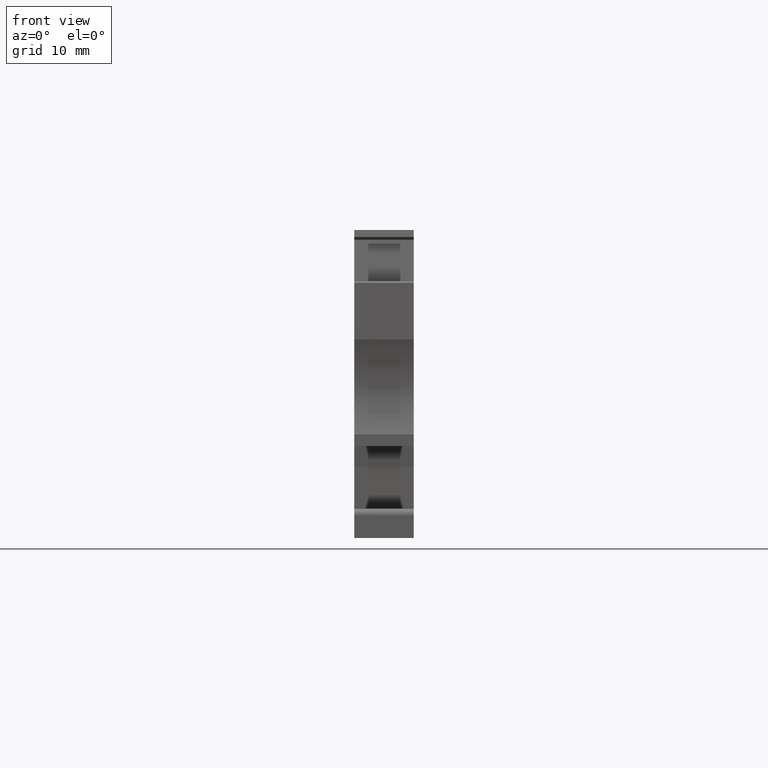
[diagram: clean part render]
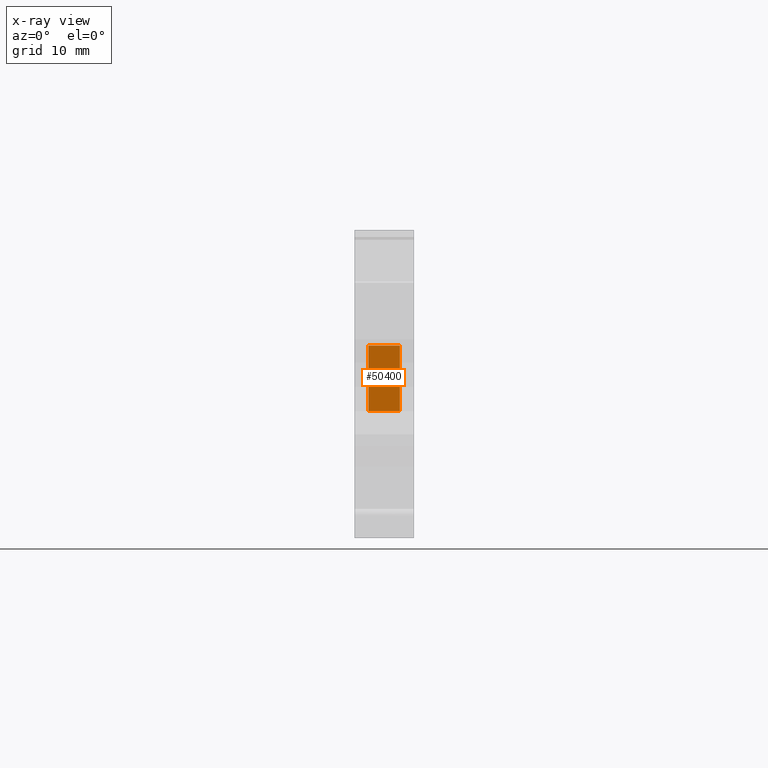
[diagram: x-ray — body ghosted, one internal face saturated and labeled with its STEP entity id]
A machine part, front view, then the same camera in x-ray: the body is ghosted and one INTERNAL B-rep face — a face not visible from any outside direction — is saturated and labeled: STEP entity #50400.
In plain terms, the highlighted planar face has unit normal (0, 1, -0).
Its self-contained STEP definition (entity closure, byte-faithful):
#40230=CARTESIAN_POINT('',(-38.9178329742152,-27.0000000004136,
51.7700000019837));
#40240=VERTEX_POINT('',#40230);
#40270=CARTESIAN_POINT('',(-38.9178329737399,-27.0000000005818,
46.4020106728896));
#40280=DIRECTION('',(-8.85556653709415E-11,3.13430806787909E-11,1.));
#40290=VECTOR('',#40280,1.);
#40300=LINE('',#40270,#40290);
#40310=CARTESIAN_POINT('',(-38.9178329738344,-27.0000000005483,
47.4700000020436));
#40320=VERTEX_POINT('',#40310);
#40330=EDGE_CURVE('',#40320,#40240,#40300,.T.);
#40730=CARTESIAN_POINT('',(-38.9178329727474,-2.19999999018363,
47.4700000012751));
#40740=DIRECTION('',(-4.38307723448621E-11,-1.,3.09890409582898E-11));
#40750=VECTOR('',#40740,1.);
#40760=LINE('',#40730,#40750);
#40770=CARTESIAN_POINT('',(-38.9178329734422,-18.0500000250281,
47.4700000017663));
#40780=VERTEX_POINT('',#40770);
#40790=EDGE_CURVE('',#40780,#40320,#40760,.T.);
#41790=CARTESIAN_POINT('',(-38.9178329731282,-2.19999999018143,
51.7700000012364));
#41800=DIRECTION('',(4.3830772344864E-11,1.,-3.01362489504622E-11));
#41810=VECTOR('',#41800,1.);
#41820=LINE('',#41790,#41810);
#41830=CARTESIAN_POINT('',(-38.917832973823,-18.0500000248481,
51.770000001714));
#41840=VERTEX_POINT('',#41830);
#41850=EDGE_CURVE('',#40240,#41840,#41820,.T.);
#50240=CARTESIAN_POINT('',(-38.9178329745369,-28.8530000247344,
54.4850024049298));
#50250=DIRECTION('',(1.,-4.3830772341129E-11,8.85556653723153E-11));
#50260=DIRECTION('',(4.38307723448372E-11,1.,-4.18748720713829E-11));
#50270=AXIS2_PLACEMENT_3D('',#50240,#50250,#50260);
#50280=PLANE('',#50270);
#50290=ORIENTED_EDGE('',*,*,#40790,.F.);
#50300=ORIENTED_EDGE('',*,*,#40330,.F.);
#50310=ORIENTED_EDGE('',*,*,#41850,.F.);
#50320=CARTESIAN_POINT('',(-38.9178329740634,-18.0500000247344,
54.4850024044774));
#50330=DIRECTION('',(8.85556653704799E-11,-4.18748720752644E-11,-1.));
#50340=VECTOR('',#50330,1.);
#50350=LINE('',#50320,#50340);
#50360=EDGE_CURVE('',#41840,#40780,#50350,.T.);
#50370=ORIENTED_EDGE('',*,*,#50360,.F.);
#50380=EDGE_LOOP('',(#50370,#50310,#50300,#50290));
#50390=FACE_OUTER_BOUND('',#50380,.T.);
#50400=ADVANCED_FACE('',(#50390),#50280,.T.);